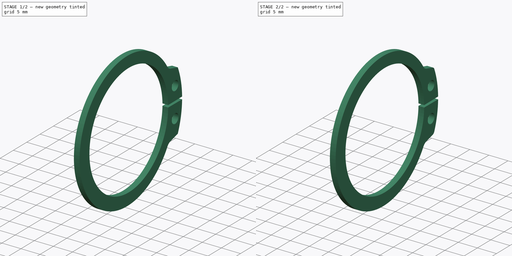
[diagram: build sequence overview — one tinted view per stage of 2, left to right]
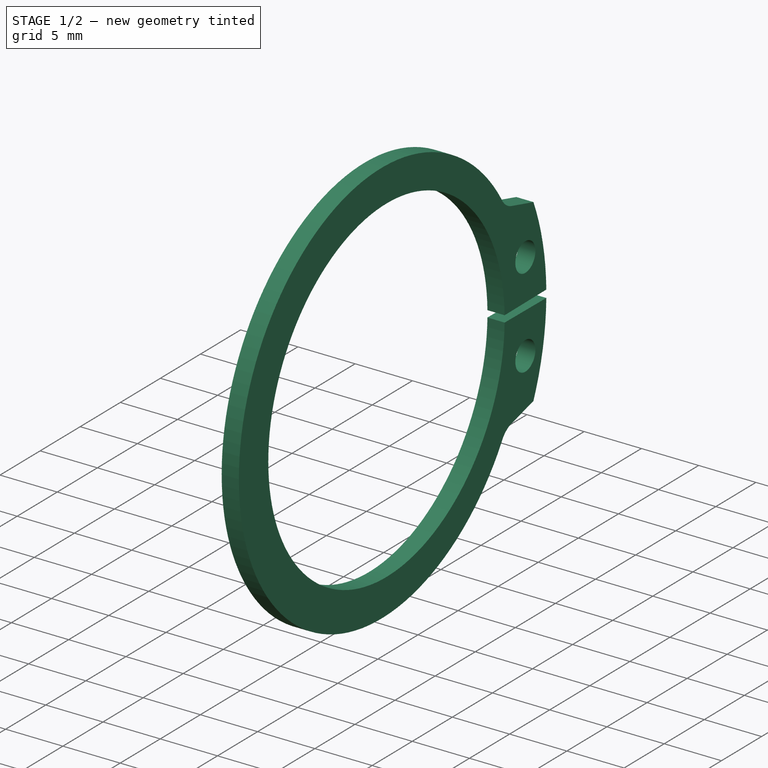
[diagram: stage 1 of 2 — iso view after this stage's code; geometry added in this stage tinted green]
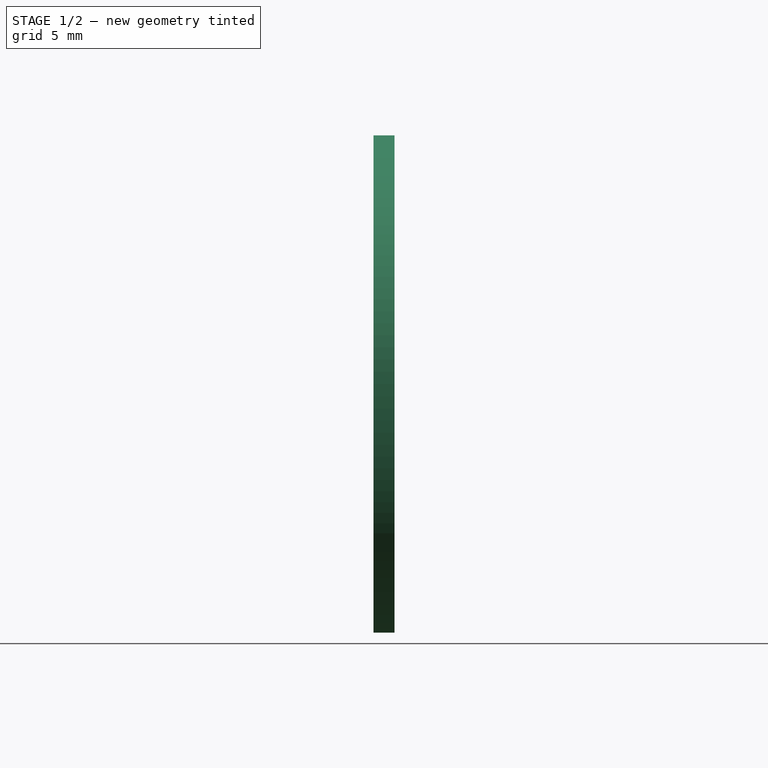
[diagram: stage 1 of 2 — front view after this stage's code; geometry added in this stage tinted green]
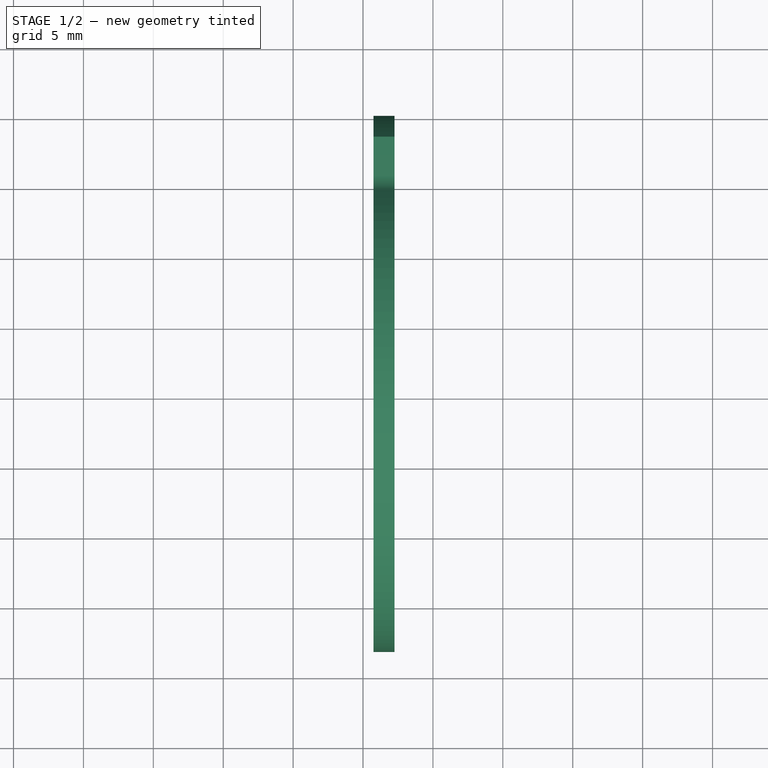
[diagram: stage 1 of 2 — top view after this stage's code; geometry added in this stage tinted green]
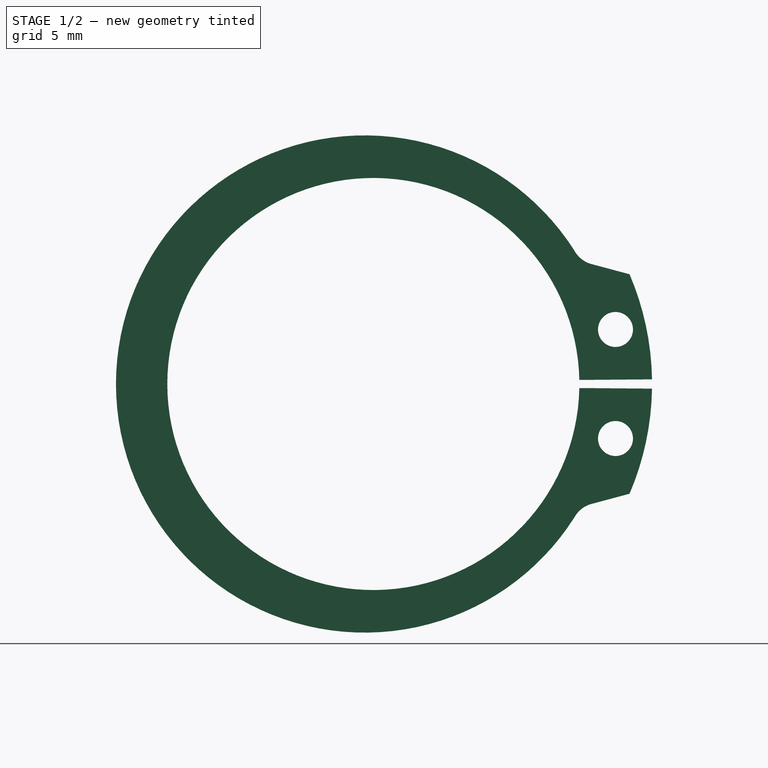
[diagram: stage 1 of 2 — right view after this stage's code; geometry added in this stage tinted green]
FCSTD DOCUMENT  (FreeCAD 0.15R4671 (Git))
Label: DIN471_CLASS_A_M32RetainingRings
License: CreativeCommons Attribution-ShareAlike
LicenseURL: http://creativecommons.org/licenses/by-sa/4.0/
objects: Sketcher::SketchObject×1, PartDesign::Pad×1, PartDesign::Mirrored×1, PartDesign::Fillet×1
note: 5 computed .brp shape members not serialized (recipe doc carries the construction recipe); baked Part::Feature solids carry a one-line shape summary decoded from their .brp

FEATURE [Sketcher::SketchObject] Sketch
  Placement = pos=(0.75,0,0) rot=(0.57735,0.57735,0.57735;2.0944rad)
  sketch-geometry (8):
    g0: Circle CenterX=17.3207 CenterY=3.9 CenterZ=0 NormalX=0 NormalY=0 NormalZ=1 Radius=1.25
    g1: ArcOfCircle CenterX=0 CenterY=0 CenterZ=0 NormalX=0 NormalY=0 NormalZ=1 Radius=19.9368 StartAngle=0.0166451 EndAngle=0.404689
    g2: ArcOfCircle CenterX=0 CenterY=0 CenterZ=0 NormalX=0 NormalY=0 NormalZ=1 Radius=14.7369 StartAngle=0.0197077 EndAngle=3.14159
    g3: ArcOfCircle CenterX=-0.624814 CenterY=0 CenterZ=0 NormalX=0 NormalY=0 NormalZ=1 Radius=17.7831 StartAngle=0.566572 EndAngle=3.14159
    g4: LineSegment StartX=-18.4079 StartY=0 StartZ=0 EndX=-14.7369 EndY=0 EndZ=0
    g5: LineSegment StartX=15.4868 StartY=8.61153 StartZ=0 EndX=18.3264 EndY=7.84977 EndZ=0
    g6: LineSegment StartX=14.734 StartY=0.290412 StartZ=0 EndX=19.934 EndY=0.331835 EndZ=0
    g7: ArcOfCircle CenterX=16.1349 CenterY=10.5036 CenterZ=0 NormalX=0 NormalY=0 NormalZ=1 Radius=2 StartAngle=3.64148 EndAngle=4.38238
  constraints (26):
    c: Radius(g0) = 1.25
    c: DistanceY(g-1,g0) = 3.9
    c: DistanceX(g-1,g0) = 17.3207
    c: Coincident(g1,g-1)
    c: Coincident(g2,g-1)
    c: PointOnObject(g2,g-1)
    c: PointOnObject(g3,g-1)
    c: PointOnObject(g3,g-1)
    c: Coincident(g4,g3)
    c: Coincident(g4,g2)
    c: Coincident(g5,g1)
    c: Coincident(g6,g2)
    c: Coincident(g6,g1)
    c: DistanceX(g6) = 5.2
    c: Radius(g2) = 14.7369
    c: Radius(g3) = 17.7831
    c: DistanceX(g-1,g3) = -0.624814
    c: DistanceX(g-1,g3) = 14.3796
    c: DistanceY(g-1,g5) = 8.61153
    c: Radius(g1) = 19.9368
    c: DistanceY(g-1,g2) = 0.290412
    c: DistanceY(g-1,g1) = 7.84977
    c: Coincident(g7,g3)
    c: Coincident(g7,g5)
    c: Radius(g7) = 2
    c: DistanceX(g5) = 2.83964
FEATURE [PartDesign::Pad] Pad
  Length = 1.5
  Length2 = 100
  Placement = pos=(0.75,0,0) rot=(0.57735,0.57735,0.57735;2.0944rad)
  Sketch = -> Sketch
  Type = 0
FEATURE [PartDesign::Mirrored] Mirrored
  MirrorPlane = -> Sketch [H_Axis]
  Originals = -> [Pad]
  Placement = pos=(0.75,0,0) rot=(0.57735,0.57735,0.57735;2.0944rad)
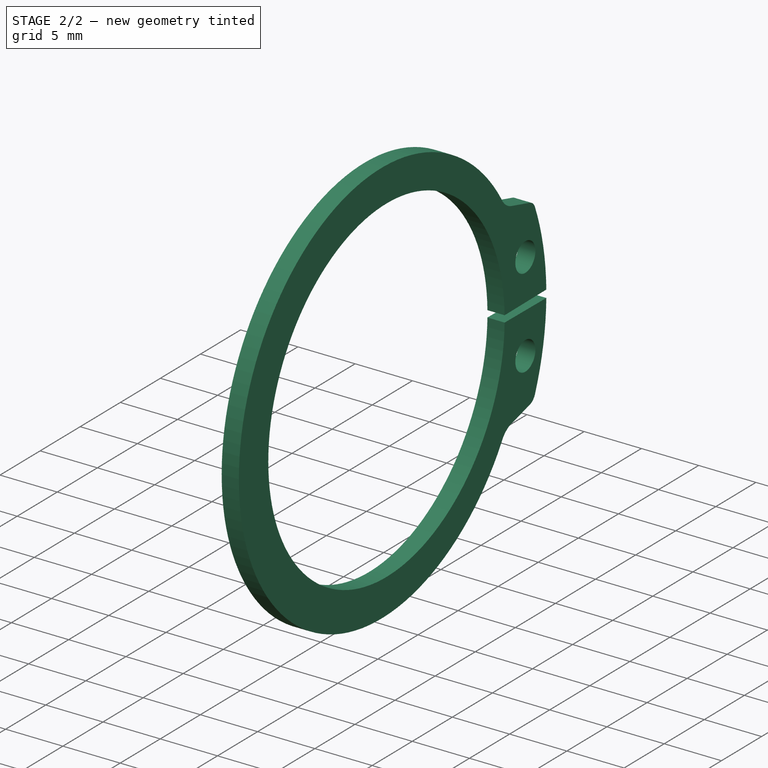
[diagram: stage 2 of 2 — iso view after this stage's code; geometry added in this stage tinted green]
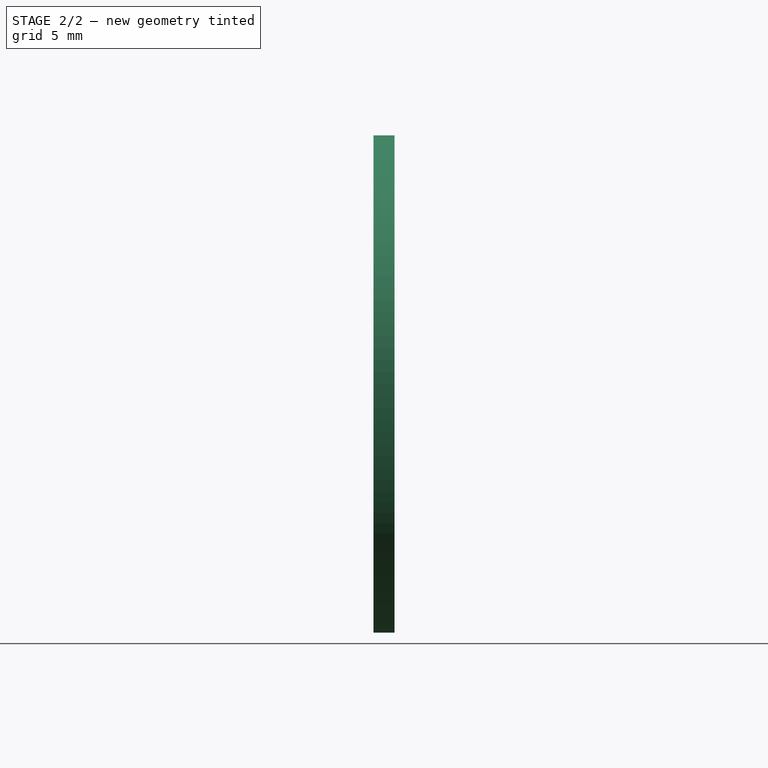
[diagram: stage 2 of 2 — front view after this stage's code; geometry added in this stage tinted green]
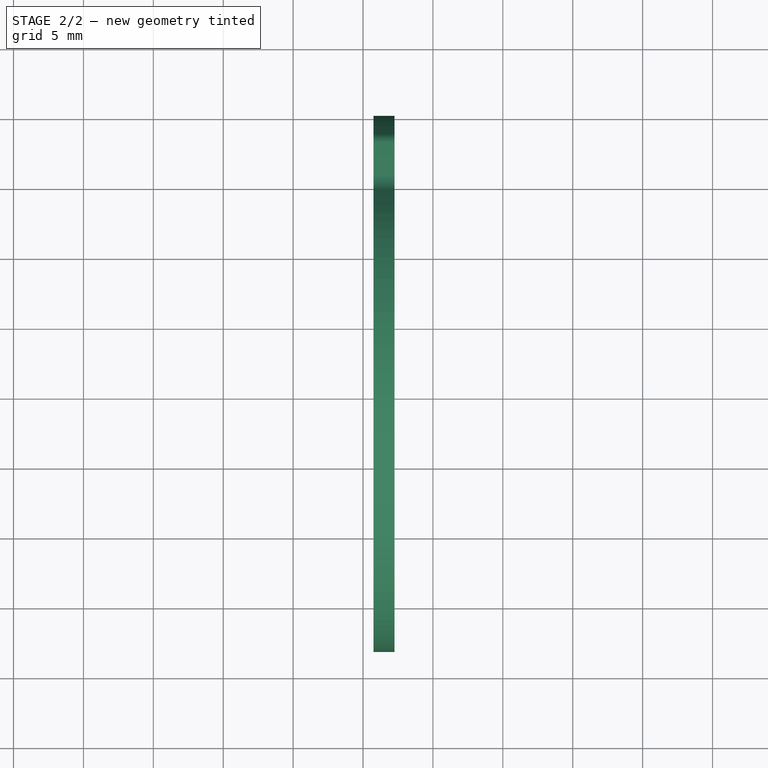
[diagram: stage 2 of 2 — top view after this stage's code; geometry added in this stage tinted green]
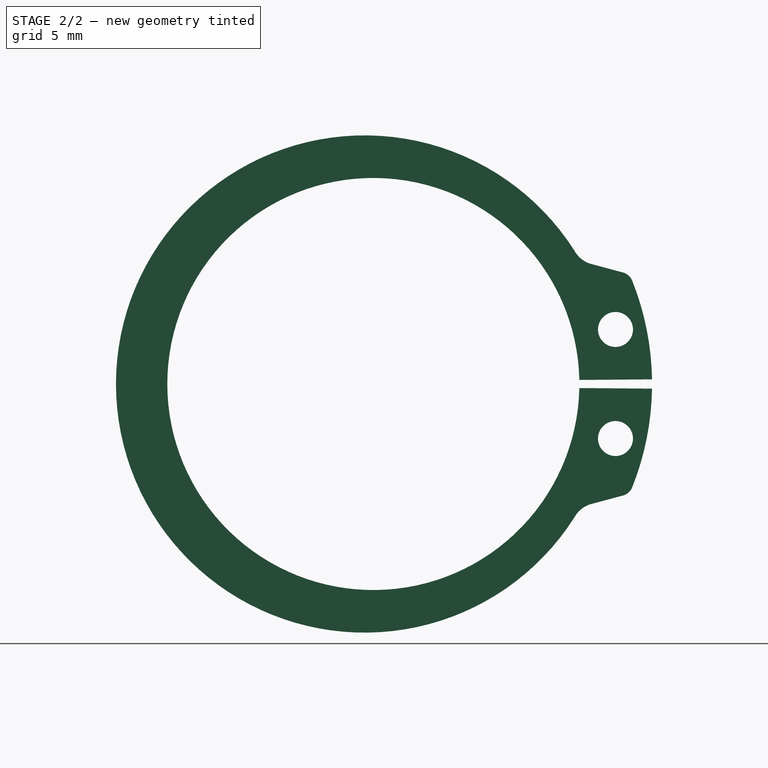
[diagram: stage 2 of 2 — right view after this stage's code; geometry added in this stage tinted green]
FEATURE [PartDesign::Fillet] Fillet
  Base = -> Mirrored [Edge5,Edge27]
  Placement = pos=(0.75,0,0) rot=(0.57735,0.57735,0.57735;2.0944rad)
  Radius = 1
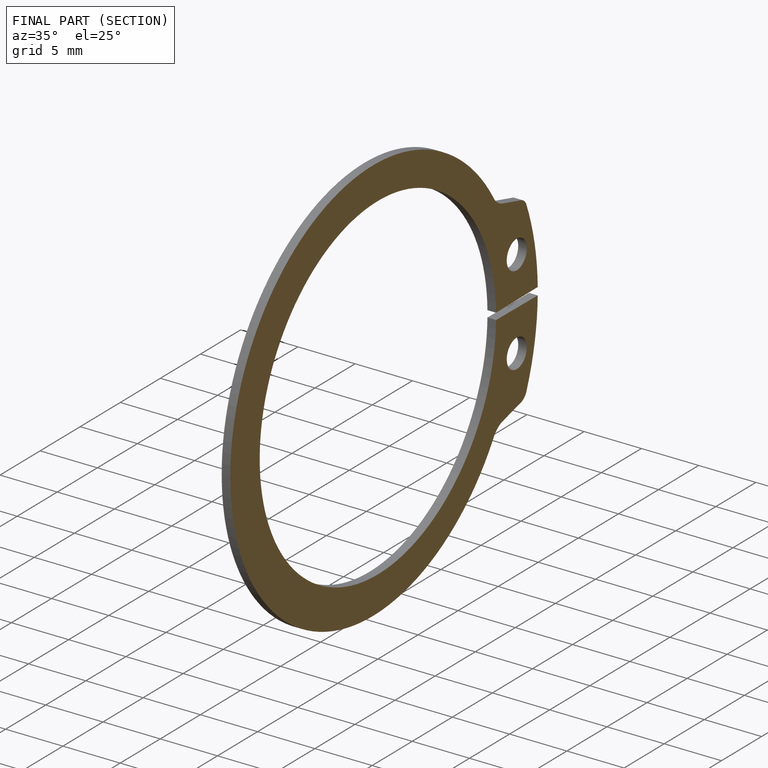
[diagram: finished part — half-section view (interior)]
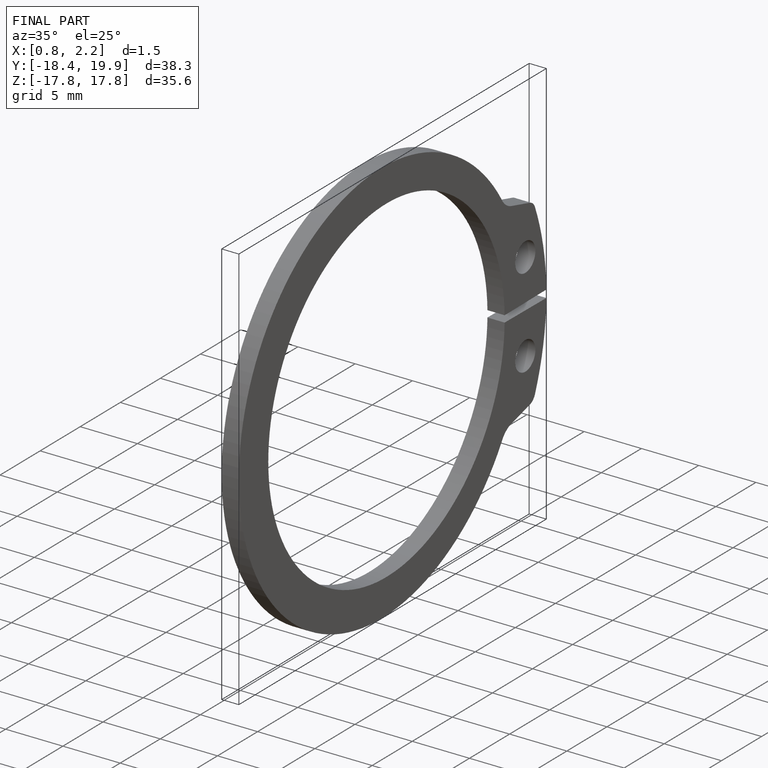
[diagram: finished part — iso view with bounding-box wireframe]
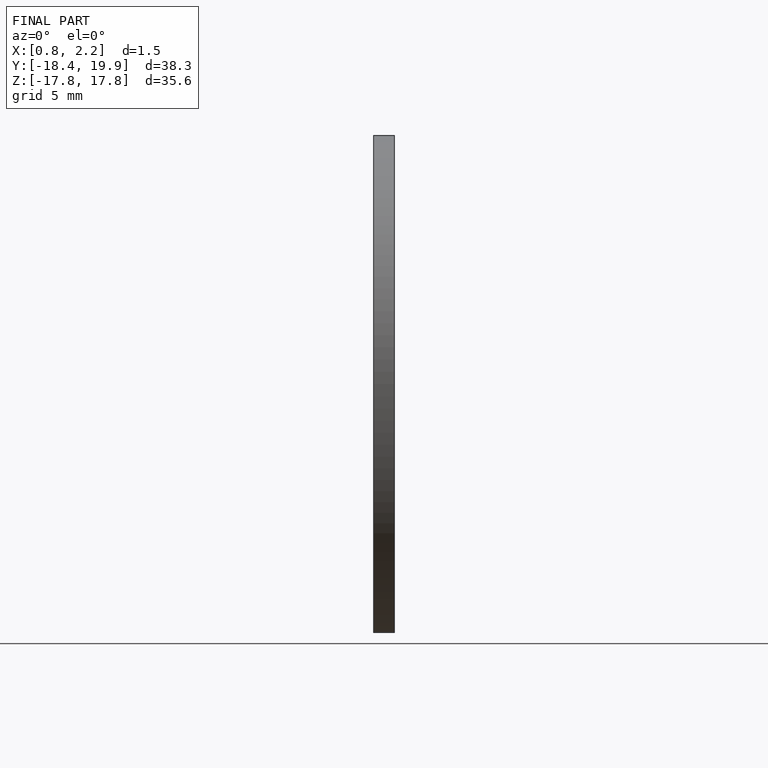
[diagram: finished part — front view with bounding-box wireframe]
